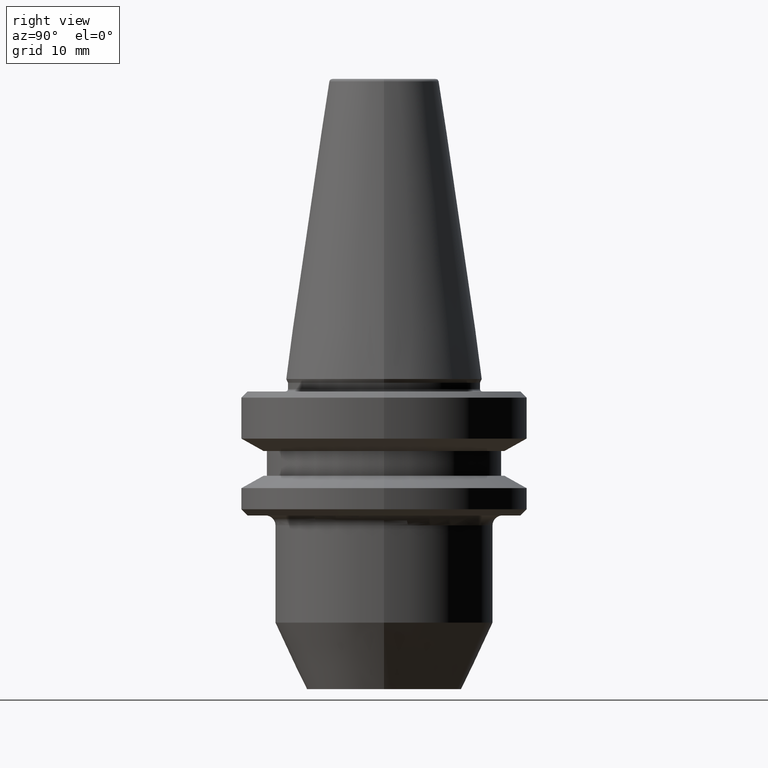
[diagram: clean part render]
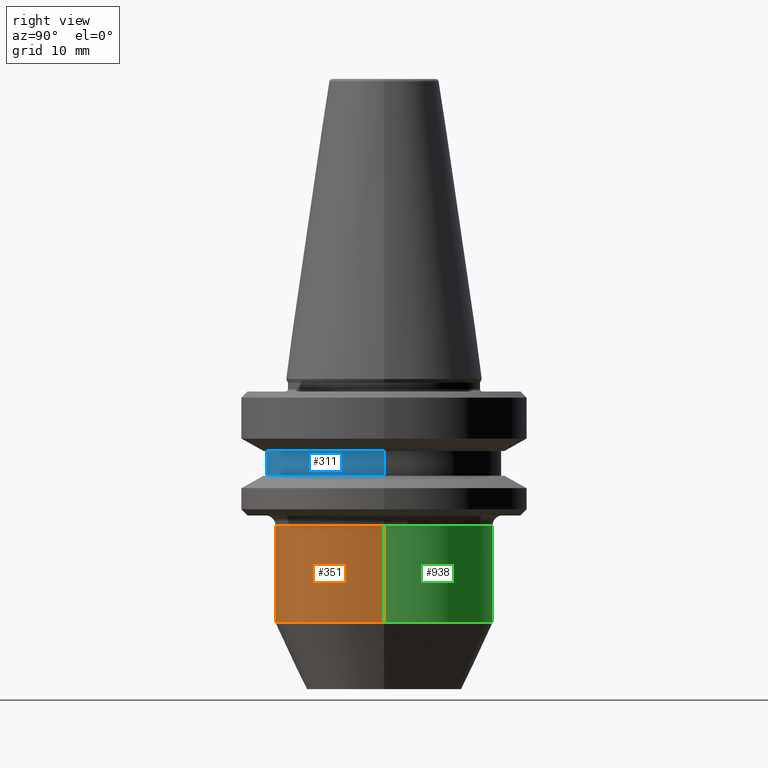
[diagram: same view with three faces highlighted in distinct colors, each labeled with its STEP entity id]
A machine part, right view with three faces highlighted in distinct colors.
Their STEP definitions:

[orange] entity #351 — the highlighted cylindrical surface (partial cylindrical patch) has radius 17.5 mm, axis along (-0, -0, 1).
#11 = CARTESIAN_POINT ( 'NONE',  ( -17.49999999999849000, 2.143131898507683300E-015, 106.7296997704041000 ) ) ;
#12 = EDGE_CURVE ( 'NONE', #570, #492, #775, .T. ) ;
#32 = VERTEX_POINT ( 'NONE', #415 ) ;
#55 = AXIS2_PLACEMENT_3D ( 'NONE', #178, #756, #564 ) ;
#62 = EDGE_CURVE ( 'NONE', #32, #672, #141, .T. ) ;
#124 = ORIENTED_EDGE ( 'NONE', *, *, #511, .F. ) ;
#141 = LINE ( 'NONE', #11, #518 ) ;
#178 = CARTESIAN_POINT ( 'NONE',  ( 0.0000000000000000000, 0.0000000000000000000, -23.59999999999983100 ) ) ;
#202 = CIRCLE ( 'NONE', #895, 17.49999999999851500 ) ;
#218 = DIRECTION ( 'NONE',  ( -0.0000000000000000000, -0.0000000000000000000, 1.000000000000000000 ) ) ;
#230 = CARTESIAN_POINT ( 'NONE',  ( -17.49999999999846200, 2.143131898507681700E-015, -23.59999999999983100 ) ) ;
#233 = ORIENTED_EDGE ( 'NONE', *, *, #62, .F. ) ;
#331 = CIRCLE ( 'NONE', #55, 17.49999999999846200 ) ;
#351 = ADVANCED_FACE ( 'NONE', ( #523 ), #651, .T. ) ;
#375 = DIRECTION ( 'NONE',  ( -0.0000000000000000000, -0.0000000000000000000, 1.000000000000000000 ) ) ;
#401 = EDGE_CURVE ( 'NONE', #32, #570, #202, .T. ) ;
#415 = CARTESIAN_POINT ( 'NONE',  ( -17.49999999999851500, 2.143131898507686400E-015, -39.27746539745256600 ) ) ;
#463 = CARTESIAN_POINT ( 'NONE',  ( 17.49999999999846200, 0.0000000000000000000, -23.59999999999983100 ) ) ;
#492 = VERTEX_POINT ( 'NONE', #463 ) ;
#506 = DIRECTION ( 'NONE',  ( 1.000000000000000000, 0.0000000000000000000, 0.0000000000000000000 ) ) ;
#511 = EDGE_CURVE ( 'NONE', #672, #492, #331, .T. ) ;
#513 = ORIENTED_EDGE ( 'NONE', *, *, #12, .T. ) ;
#518 = VECTOR ( 'NONE', #584, 1000.000000000000000 ) ;
#523 = FACE_OUTER_BOUND ( 'NONE', #804, .T. ) ;
#563 = VECTOR ( 'NONE', #375, 1000.000000000000000 ) ;
#564 = DIRECTION ( 'NONE',  ( 1.000000000000000000, 0.0000000000000000000, 0.0000000000000000000 ) ) ;
#570 = VERTEX_POINT ( 'NONE', #779 ) ;
#584 = DIRECTION ( 'NONE',  ( -0.0000000000000000000, -0.0000000000000000000, 1.000000000000000000 ) ) ;
#644 = DIRECTION ( 'NONE',  ( 1.000000000000000000, 0.0000000000000000000, 0.0000000000000000000 ) ) ;
#651 = CYLINDRICAL_SURFACE ( 'NONE', #786, 17.49999999999849000 ) ;
#657 = CARTESIAN_POINT ( 'NONE',  ( 17.49999999999849000, 0.0000000000000000000, 106.7296997704041000 ) ) ;
#672 = VERTEX_POINT ( 'NONE', #230 ) ;
#756 = DIRECTION ( 'NONE',  ( -0.0000000000000000000, -0.0000000000000000000, 1.000000000000000000 ) ) ;
#775 = LINE ( 'NONE', #657, #563 ) ;
#779 = CARTESIAN_POINT ( 'NONE',  ( 17.49999999999851500, 0.0000000000000000000, -39.27746539745256600 ) ) ;
#786 = AXIS2_PLACEMENT_3D ( 'NONE', #809, #218, #644 ) ;
#804 = EDGE_LOOP ( 'NONE', ( #233, #811, #513, #124 ) ) ;
#809 = CARTESIAN_POINT ( 'NONE',  ( 0.0000000000000000000, 0.0000000000000000000, 106.7296997704041000 ) ) ;
#811 = ORIENTED_EDGE ( 'NONE', *, *, #401, .T. ) ;
#818 = CARTESIAN_POINT ( 'NONE',  ( 0.0000000000000000000, 0.0000000000000000000, -39.27746539745256600 ) ) ;
#895 = AXIS2_PLACEMENT_3D ( 'NONE', #818, #901, #506 ) ;
#901 = DIRECTION ( 'NONE',  ( -0.0000000000000000000, -0.0000000000000000000, 1.000000000000000000 ) ) ;

[blue] entity #311 — the highlighted cylindrical surface (partial cylindrical patch) has radius 19 mm, axis along (-0, -0, 1).
#9 = CARTESIAN_POINT ( 'NONE',  ( 0.0000000000000000000, 0.0000000000000000000, -15.59999999999983600 ) ) ;
#90 = DIRECTION ( 'NONE',  ( 1.000000000000000000, 0.0000000000000000000, 0.0000000000000000000 ) ) ;
#94 = CIRCLE ( 'NONE', #116, 19.00000000000034800 ) ;
#116 = AXIS2_PLACEMENT_3D ( 'NONE', #9, #888, #396 ) ;
#132 = ORIENTED_EDGE ( 'NONE', *, *, #151, .T. ) ;
#148 = DIRECTION ( 'NONE',  ( -0.0000000000000000000, -0.0000000000000000000, 1.000000000000000000 ) ) ;
#151 = EDGE_CURVE ( 'NONE', #209, #497, #94, .T. ) ;
#198 = DIRECTION ( 'NONE',  ( -0.0000000000000000000, -0.0000000000000000000, 1.000000000000000000 ) ) ;
#209 = VERTEX_POINT ( 'NONE', #395 ) ;
#227 = ORIENTED_EDGE ( 'NONE', *, *, #427, .F. ) ;
#234 = EDGE_CURVE ( 'NONE', #497, #734, #956, .T. ) ;
#249 = DIRECTION ( 'NONE',  ( 1.000000000000000000, 0.0000000000000000000, 0.0000000000000000000 ) ) ;
#254 = DIRECTION ( 'NONE',  ( -0.0000000000000000000, -0.0000000000000000000, 1.000000000000000000 ) ) ;
#257 = ORIENTED_EDGE ( 'NONE', *, *, #234, .T. ) ;
#285 = EDGE_LOOP ( 'NONE', ( #227, #132, #257, #458 ) ) ;
#291 = CARTESIAN_POINT ( 'NONE',  ( 19.00000000000034800, 0.0000000000000000000, -11.59999999999938900 ) ) ;
#292 = CARTESIAN_POINT ( 'NONE',  ( -19.00000000000034800, 2.326828918380014000E-015, -11.59999999999938900 ) ) ;
#303 = VERTEX_POINT ( 'NONE', #292 ) ;
#311 = ADVANCED_FACE ( 'NONE', ( #919 ), #703, .T. ) ;
#376 = VECTOR ( 'NONE', #254, 1000.000000000000000 ) ;
#393 = VECTOR ( 'NONE', #405, 1000.000000000000000 ) ;
#395 = CARTESIAN_POINT ( 'NONE',  ( -19.00000000000034800, 2.326828918380014000E-015, -15.59999999999983600 ) ) ;
#396 = DIRECTION ( 'NONE',  ( 1.000000000000000000, 0.0000000000000000000, 0.0000000000000000000 ) ) ;
#405 = DIRECTION ( 'NONE',  ( -0.0000000000000000000, -0.0000000000000000000, 1.000000000000000000 ) ) ;
#421 = EDGE_CURVE ( 'NONE', #303, #734, #817, .T. ) ;
#427 = EDGE_CURVE ( 'NONE', #209, #303, #575, .T. ) ;
#447 = CARTESIAN_POINT ( 'NONE',  ( 0.0000000000000000000, 0.0000000000000000000, 106.7296997704041000 ) ) ;
#458 = ORIENTED_EDGE ( 'NONE', *, *, #421, .F. ) ;
#497 = VERTEX_POINT ( 'NONE', #733 ) ;
#510 = CARTESIAN_POINT ( 'NONE',  ( -19.00000000000034800, 2.326828918380014000E-015, 106.7296997704041000 ) ) ;
#575 = LINE ( 'NONE', #510, #376 ) ;
#599 = CARTESIAN_POINT ( 'NONE',  ( 0.0000000000000000000, 0.0000000000000000000, -11.59999999999938900 ) ) ;
#682 = AXIS2_PLACEMENT_3D ( 'NONE', #599, #148, #249 ) ;
#703 = CYLINDRICAL_SURFACE ( 'NONE', #896, 19.00000000000034800 ) ;
#733 = CARTESIAN_POINT ( 'NONE',  ( 19.00000000000034800, 0.0000000000000000000, -15.59999999999983600 ) ) ;
#734 = VERTEX_POINT ( 'NONE', #291 ) ;
#817 = CIRCLE ( 'NONE', #682, 19.00000000000034800 ) ;
#848 = CARTESIAN_POINT ( 'NONE',  ( 19.00000000000034800, 0.0000000000000000000, 106.7296997704041000 ) ) ;
#888 = DIRECTION ( 'NONE',  ( -0.0000000000000000000, -0.0000000000000000000, 1.000000000000000000 ) ) ;
#896 = AXIS2_PLACEMENT_3D ( 'NONE', #447, #198, #90 ) ;
#919 = FACE_OUTER_BOUND ( 'NONE', #285, .T. ) ;
#956 = LINE ( 'NONE', #848, #393 ) ;

[green] entity #938 — the highlighted cylindrical surface (partial cylindrical patch) has radius 17.5 mm, axis along (-0, -0, 1).
#11 = CARTESIAN_POINT ( 'NONE',  ( -17.49999999999849000, 2.143131898507683300E-015, 106.7296997704041000 ) ) ;
#12 = EDGE_CURVE ( 'NONE', #570, #492, #775, .T. ) ;
#32 = VERTEX_POINT ( 'NONE', #415 ) ;
#62 = EDGE_CURVE ( 'NONE', #32, #672, #141, .T. ) ;
#87 = DIRECTION ( 'NONE',  ( 1.000000000000000000, 0.0000000000000000000, 0.0000000000000000000 ) ) ;
#97 = CARTESIAN_POINT ( 'NONE',  ( 0.0000000000000000000, 0.0000000000000000000, 106.7296997704041000 ) ) ;
#102 = CYLINDRICAL_SURFACE ( 'NONE', #826, 17.49999999999849000 ) ;
#141 = LINE ( 'NONE', #11, #518 ) ;
#150 = FACE_OUTER_BOUND ( 'NONE', #704, .T. ) ;
#230 = CARTESIAN_POINT ( 'NONE',  ( -17.49999999999846200, 2.143131898507681700E-015, -23.59999999999983100 ) ) ;
#251 = ORIENTED_EDGE ( 'NONE', *, *, #347, .F. ) ;
#323 = CIRCLE ( 'NONE', #667, 17.49999999999846200 ) ;
#347 = EDGE_CURVE ( 'NONE', #492, #672, #323, .T. ) ;
#372 = CIRCLE ( 'NONE', #566, 17.49999999999851500 ) ;
#375 = DIRECTION ( 'NONE',  ( -0.0000000000000000000, -0.0000000000000000000, 1.000000000000000000 ) ) ;
#415 = CARTESIAN_POINT ( 'NONE',  ( -17.49999999999851500, 2.143131898507686400E-015, -39.27746539745256600 ) ) ;
#462 = DIRECTION ( 'NONE',  ( -0.0000000000000000000, -0.0000000000000000000, 1.000000000000000000 ) ) ;
#463 = CARTESIAN_POINT ( 'NONE',  ( 17.49999999999846200, 0.0000000000000000000, -23.59999999999983100 ) ) ;
#492 = VERTEX_POINT ( 'NONE', #463 ) ;
#518 = VECTOR ( 'NONE', #584, 1000.000000000000000 ) ;
#563 = VECTOR ( 'NONE', #375, 1000.000000000000000 ) ;
#566 = AXIS2_PLACEMENT_3D ( 'NONE', #687, #603, #847 ) ;
#570 = VERTEX_POINT ( 'NONE', #779 ) ;
#580 = ORIENTED_EDGE ( 'NONE', *, *, #865, .T. ) ;
#584 = DIRECTION ( 'NONE',  ( -0.0000000000000000000, -0.0000000000000000000, 1.000000000000000000 ) ) ;
#603 = DIRECTION ( 'NONE',  ( -0.0000000000000000000, -0.0000000000000000000, 1.000000000000000000 ) ) ;
#657 = CARTESIAN_POINT ( 'NONE',  ( 17.49999999999849000, 0.0000000000000000000, 106.7296997704041000 ) ) ;
#667 = AXIS2_PLACEMENT_3D ( 'NONE', #774, #462, #87 ) ;
#669 = DIRECTION ( 'NONE',  ( 1.000000000000000000, 0.0000000000000000000, 0.0000000000000000000 ) ) ;
#672 = VERTEX_POINT ( 'NONE', #230 ) ;
#687 = CARTESIAN_POINT ( 'NONE',  ( 0.0000000000000000000, 0.0000000000000000000, -39.27746539745256600 ) ) ;
#693 = ORIENTED_EDGE ( 'NONE', *, *, #12, .F. ) ;
#704 = EDGE_LOOP ( 'NONE', ( #580, #957, #251, #693 ) ) ;
#774 = CARTESIAN_POINT ( 'NONE',  ( 0.0000000000000000000, 0.0000000000000000000, -23.59999999999983100 ) ) ;
#775 = LINE ( 'NONE', #657, #563 ) ;
#779 = CARTESIAN_POINT ( 'NONE',  ( 17.49999999999851500, 0.0000000000000000000, -39.27746539745256600 ) ) ;
#826 = AXIS2_PLACEMENT_3D ( 'NONE', #97, #881, #669 ) ;
#847 = DIRECTION ( 'NONE',  ( 1.000000000000000000, 0.0000000000000000000, 0.0000000000000000000 ) ) ;
#865 = EDGE_CURVE ( 'NONE', #570, #32, #372, .T. ) ;
#881 = DIRECTION ( 'NONE',  ( -0.0000000000000000000, -0.0000000000000000000, 1.000000000000000000 ) ) ;
#938 = ADVANCED_FACE ( 'NONE', ( #150 ), #102, .T. ) ;
#957 = ORIENTED_EDGE ( 'NONE', *, *, #62, .T. ) ;